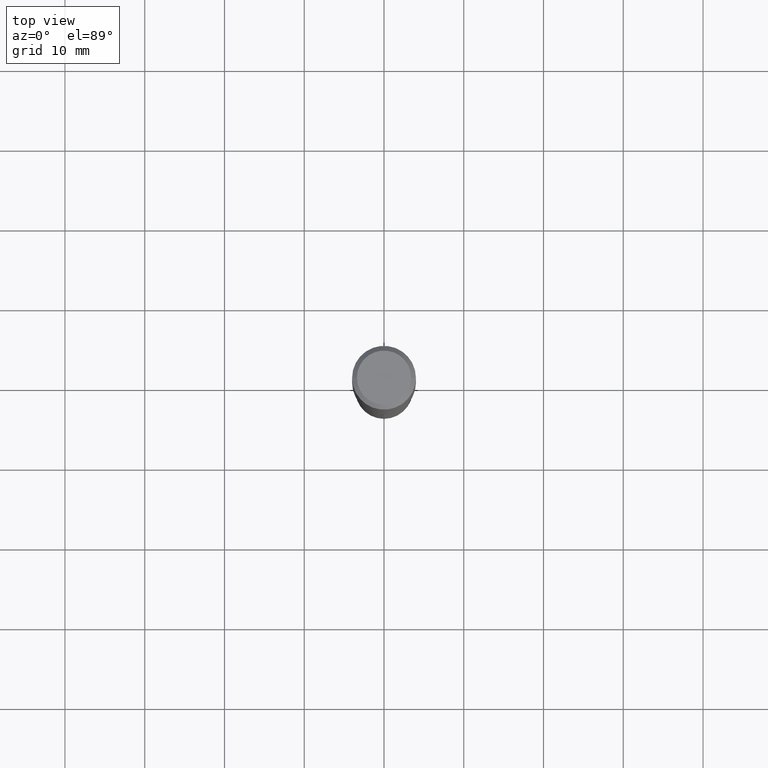
[diagram: clean part render]
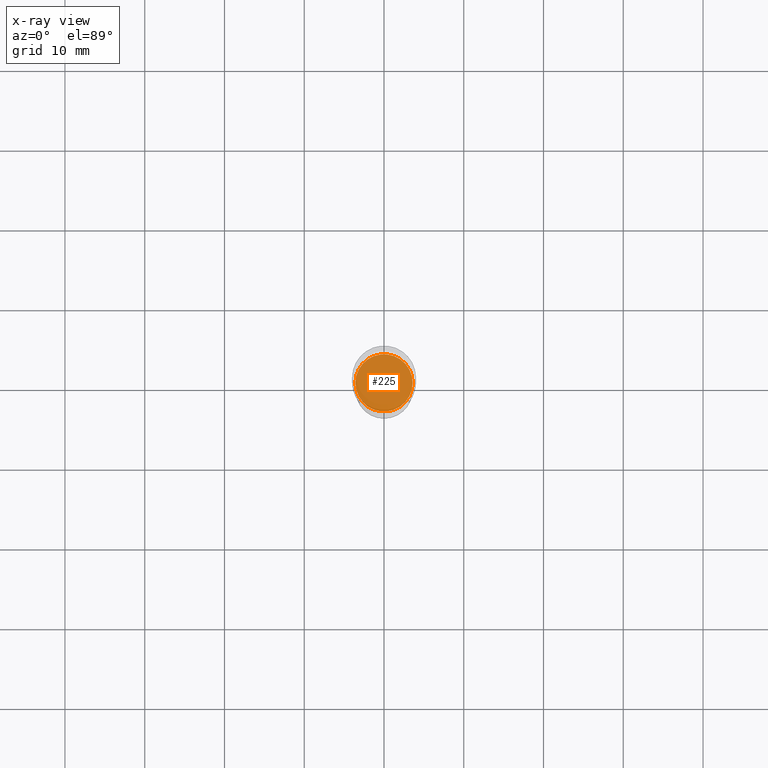
[diagram: x-ray — body ghosted, one internal face saturated and labeled with its STEP entity id]
A machine part, top view, then the same camera in x-ray: the body is ghosted and one INTERNAL B-rep face — a face not visible from any outside direction — is saturated and labeled: STEP entity #225.
In plain terms, the highlighted planar face has unit normal (-0, 0, 1).
Its self-contained STEP definition (entity closure, byte-faithful):
#2 = CARTESIAN_POINT ( 'NONE',  ( 3.659399521575439863E-29, -5.224652675444884140E-15, -1.496400000000000396 ) ) ;
#22 = CARTESIAN_POINT ( 'NONE',  ( 0.1412499999999999867, -6.210996153668069155E-15, -1.496400000000000396 ) ) ;
#72 = VERTEX_POINT ( 'NONE', #209 ) ;
#121 = DIRECTION ( 'NONE',  ( 1.000000000000000000, -6.982962677686263555E-15, 0.000000000000000000 ) ) ;
#126 = EDGE_CURVE ( 'NONE', #72, #198, #442, .T. ) ;
#170 = AXIS2_PLACEMENT_3D ( 'NONE', #394, #309, #121 ) ;
#195 = AXIS2_PLACEMENT_3D ( 'NONE', #283, #285, #446 ) ;
#197 = CIRCLE ( 'NONE', #362, 0.1412499999999999867 ) ;
#198 = VERTEX_POINT ( 'NONE', #22 ) ;
#209 = CARTESIAN_POINT ( 'NONE',  ( -0.1412499999999999867, -4.218361834009631521E-15, -1.496400000000000396 ) ) ;
#225 = ADVANCED_FACE ( 'NONE', ( #476 ), #282, .F. ) ;
#282 = PLANE ( 'NONE',  #195 ) ;
#283 = CARTESIAN_POINT ( 'NONE',  ( 1.638449867910776433E-29, -8.118767604803614284E-15, -1.496400000000000396 ) ) ;
#285 = DIRECTION ( 'NONE',  ( -2.438088387897960049E-29, 3.491481338843145188E-15, 1.000000000000000000 ) ) ;
#296 = ORIENTED_EDGE ( 'NONE', *, *, #126, .F. ) ;
#298 = ORIENTED_EDGE ( 'NONE', *, *, #421, .F. ) ;
#309 = DIRECTION ( 'NONE',  ( -2.445468806185136597E-29, 3.491481338843145583E-15, 1.000000000000000000 ) ) ;
#327 = EDGE_LOOP ( 'NONE', ( #298, #296 ) ) ;
#341 = DIRECTION ( 'NONE',  ( 1.000000000000000000, -6.982962677686263555E-15, 0.000000000000000000 ) ) ;
#362 = AXIS2_PLACEMENT_3D ( 'NONE', #2, #376, #341 ) ;
#376 = DIRECTION ( 'NONE',  ( -2.445468806185136597E-29, 3.491481338843145583E-15, 1.000000000000000000 ) ) ;
#394 = CARTESIAN_POINT ( 'NONE',  ( 3.659399521575439863E-29, -5.224652675444884140E-15, -1.496400000000000396 ) ) ;
#421 = EDGE_CURVE ( 'NONE', #198, #72, #197, .T. ) ;
#442 = CIRCLE ( 'NONE', #170, 0.1412499999999999867 ) ;
#446 = DIRECTION ( 'NONE',  ( 1.000000000000000000, -6.982962677686265922E-15, 4.876176775795935793E-29 ) ) ;
#476 = FACE_OUTER_BOUND ( 'NONE', #327, .T. ) ;